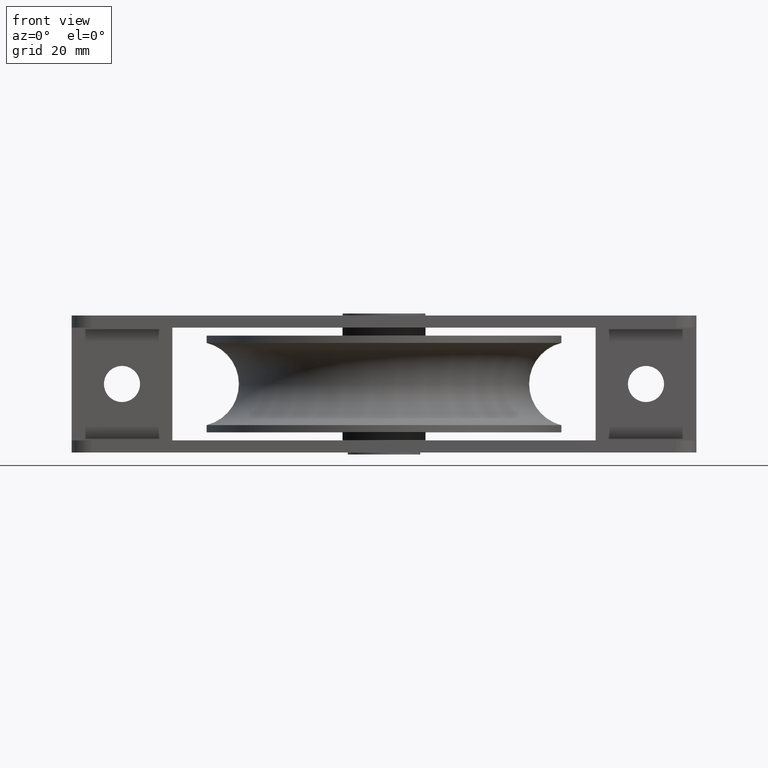
[diagram: clean part render]
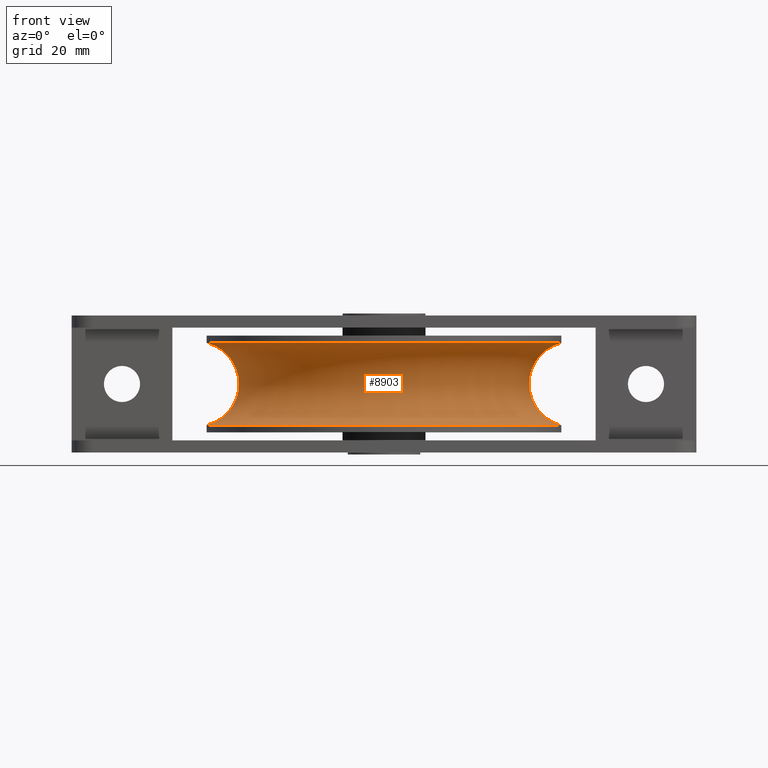
[diagram: same view with one face highlighted and labeled with its STEP entity id]
A machine part, front view. The second image highlights one B-rep face of the part: STEP entity #8903.
In plain terms, the highlighted toroidal blend (fillet) surface has major radius 46.5 mm and minor (blend) radius 10.5 mm.
Its self-contained STEP definition (entity closure, byte-faithful):
#722 = FACE_OUTER_BOUND ( 'NONE', #7887, .T. ) ;
#1256 = CIRCLE ( 'NONE', #13113, 44.00000000000004300 ) ;
#1397 = VERTEX_POINT ( 'NONE', #2120 ) ;
#2120 = CARTESIAN_POINT ( 'NONE',  ( 44.00000000000004300, 0.0000000000000000000, -10.19803902718558300 ) ) ;
#3018 = EDGE_CURVE ( 'NONE', #1397, #1397, #1256, .T. ) ;
#3027 = DIRECTION ( 'NONE',  ( -0.0000000000000000000, -0.0000000000000000000, 1.000000000000000000 ) ) ;
#3357 = DIRECTION ( 'NONE',  ( -0.0000000000000000000, -0.0000000000000000000, 1.000000000000000000 ) ) ;
#3414 = CARTESIAN_POINT ( 'NONE',  ( 0.0000000000000000000, 0.0000000000000000000, -10.19803902718558300 ) ) ;
#4224 = CARTESIAN_POINT ( 'NONE',  ( 0.0000000000000000000, 0.0000000000000000000, 0.0000000000000000000 ) ) ;
#5878 = CARTESIAN_POINT ( 'NONE',  ( 0.0000000000000000000, 0.0000000000000000000, 10.19803902718558300 ) ) ;
#6325 = EDGE_CURVE ( 'NONE', #9531, #9531, #7222, .T. ) ;
#7187 = DIRECTION ( 'NONE',  ( 1.000000000000000000, 0.0000000000000000000, 0.0000000000000000000 ) ) ;
#7222 = CIRCLE ( 'NONE', #13719, 44.00000000000004300 ) ;
#7747 = CARTESIAN_POINT ( 'NONE',  ( 44.00000000000004300, 0.0000000000000000000, 10.19803902718558300 ) ) ;
#7887 = EDGE_LOOP ( 'NONE', ( #11301 ) ) ;
#7960 = DIRECTION ( 'NONE',  ( 1.000000000000000000, 0.0000000000000000000, 0.0000000000000000000 ) ) ;
#8903 = ADVANCED_FACE ( 'NONE', ( #10981, #722 ), #11151, .F. ) ;
#9531 = VERTEX_POINT ( 'NONE', #7747 ) ;
#10942 = DIRECTION ( 'NONE',  ( 1.000000000000000000, 0.0000000000000000000, 0.0000000000000000000 ) ) ;
#10981 = FACE_OUTER_BOUND ( 'NONE', #11867, .T. ) ;
#11151 = TOROIDAL_SURFACE ( 'NONE', #13466, 46.50000000000000000, 10.50000000000000200 ) ;
#11301 = ORIENTED_EDGE ( 'NONE', *, *, #6325, .F. ) ;
#11867 = EDGE_LOOP ( 'NONE', ( #13158 ) ) ;
#13113 = AXIS2_PLACEMENT_3D ( 'NONE', #3414, #3357, #7960 ) ;
#13158 = ORIENTED_EDGE ( 'NONE', *, *, #3018, .T. ) ;
#13466 = AXIS2_PLACEMENT_3D ( 'NONE', #4224, #3027, #10942 ) ;
#13719 = AXIS2_PLACEMENT_3D ( 'NONE', #5878, #13849, #7187 ) ;
#13849 = DIRECTION ( 'NONE',  ( -0.0000000000000000000, -0.0000000000000000000, 1.000000000000000000 ) ) ;